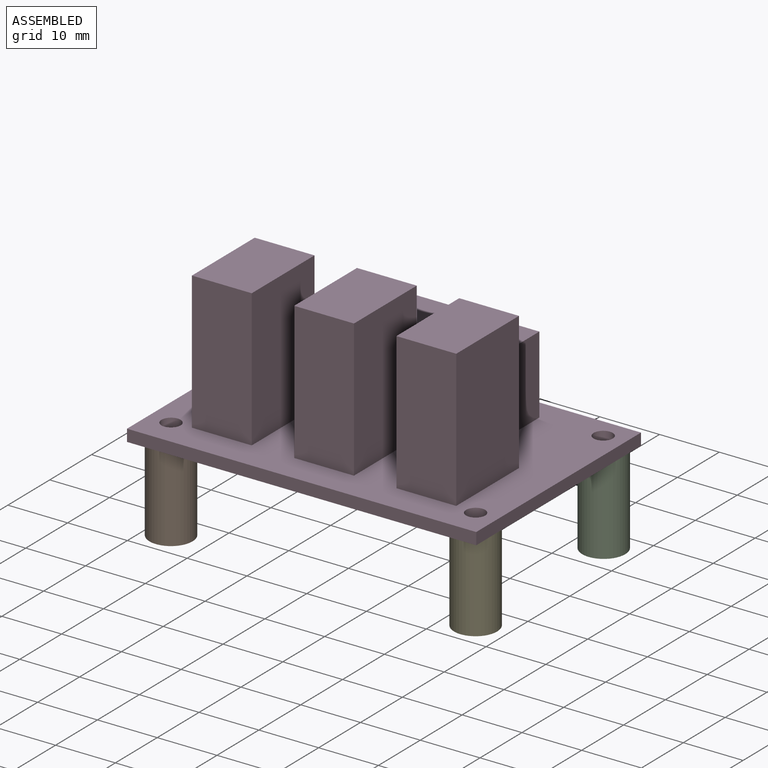
[diagram: assembled view]
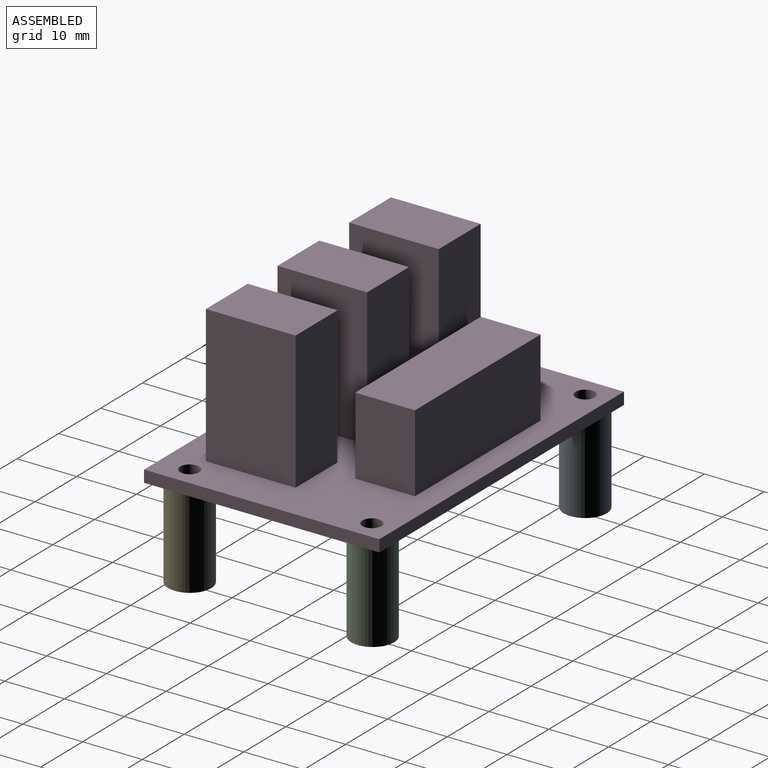
[diagram: assembled view, second angle]
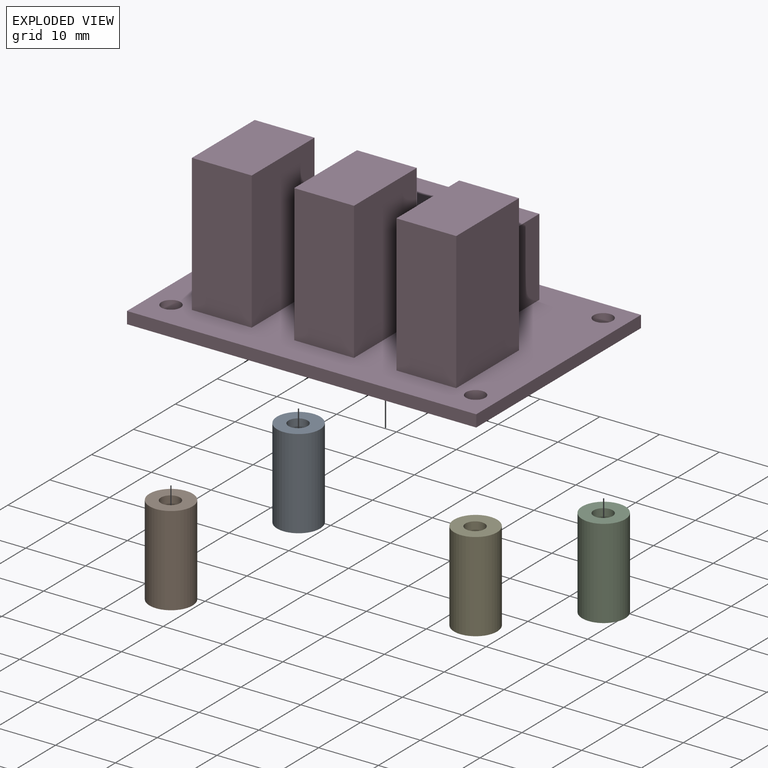
[diagram: exploded view]
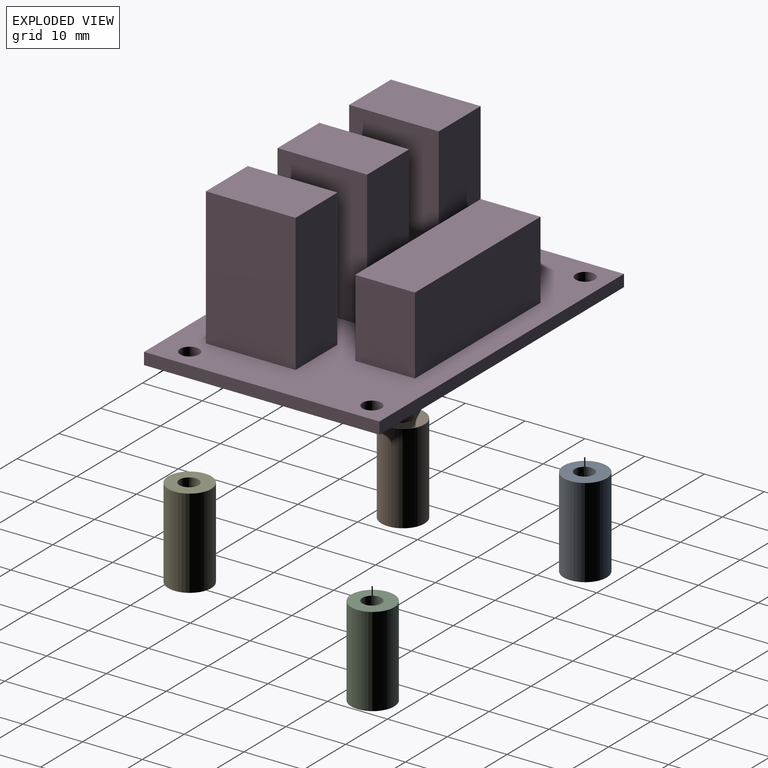
[diagram: exploded view, second angle]
ASSEMBLY  parts=5 mates=4
PART A: 4 faces, bbox 7.2x7.2x15 mm
  f0: cylinder r=1.6mm len=15mm, axis (0,0,-1), area 150.8mm2, adj f2,f3
  f1: cylinder r=3.6mm len=15mm, axis (0,0,-1), area 339.3mm2, adj f2,f3
  f2: plane 7.2x7.2mm, normal (0,0,1), area 32.7mm2, adj f0,f1
  f3: plane 7.2x7.2mm, normal (0,0,-1), area 32.7mm2, adj f0,f1
PART B: same geometry as A
PART C: same geometry as A
PART D: 30 faces, bbox 58.4x39.4x25 mm
  f0: plane 58.42x2mm, normal (0,1,0), area 116.8mm2, adj f1,f7,f8,f9
  f1: plane 39.37x2mm, normal (-1,0,0), area 78.7mm2, adj f0,f2,f8,f9
  f2: plane 58.42x2mm, normal (0,-1,0), area 116.8mm2, adj f1,f7,f8,f9
  f3: cylinder r=1.6mm len=3.2mm, axis (0,0,-1), area 20.1mm2, adj f8,f9
  f4: cylinder r=1.6mm len=3.2mm, axis (0,0,-1), area 20.1mm2, adj f8,f9
  f5: cylinder r=1.6mm len=3.2mm, axis (0,0,-1), area 20.1mm2, adj f8,f9
  f6: cylinder r=1.6mm len=3.2mm, axis (0,0,-1), area 20.1mm2, adj f8,f9
  f7: plane 39.37x2mm, normal (1,0,0), area 78.7mm2, adj f0,f2,f8,f9
  f8: plane 58.42x39.37mm, normal (0,0,1), area 1517.8mm2, adj f0,f1,f2,f3,f4,f5,f6,f7
  f9: plane 58.42x39.37mm, normal (0,0,-1), area 2267.8mm2, adj f0,f1,f2,f3,f4,f5,f6,f7
  f10: plane 23x15mm, normal (-1,0,0), area 345mm2, adj f8,f11,f13,f14
  f11: plane 23x10mm, normal (0,-1,0), area 230mm2, adj f8,f10,f12,f14
  f12: plane 23x15mm, normal (1,0,0), area 345mm2, adj f8,f11,f13,f14
  f13: plane 23x10mm, normal (0,1,0), area 230mm2, adj f8,f10,f12,f14
  f14: plane 15x10mm, normal (0,0,1), area 150mm2, adj f10,f11,f12,f13
  f15: plane 23x15mm, normal (-1,0,0), area 345mm2, adj f8,f16,f18,f19
  f16: plane 23x10mm, normal (0,-1,0), area 230mm2, adj f8,f15,f17,f19
  f17: plane 23x15mm, normal (1,0,0), area 345mm2, adj f8,f16,f18,f19
  f18: plane 23x10mm, normal (0,1,0), area 230mm2, adj f8,f15,f17,f19
  f19: plane 15x10mm, normal (0,0,1), area 150mm2, adj f15,f16,f17,f18
  f20: plane 23x15mm, normal (-1,0,0), area 345mm2, adj f8,f21,f23,f24
  f21: plane 23x10mm, normal (0,-1,0), area 230mm2, adj f8,f20,f22,f24
  f22: plane 23x15mm, normal (1,0,0), area 345mm2, adj f8,f21,f23,f24
  f23: plane 23x10mm, normal (0,1,0), area 230mm2, adj f8,f20,f22,f24
  f24: plane 15x10mm, normal (0,0,1), area 150mm2, adj f20,f21,f22,f23
  f25: plane 30x13mm, normal (0,1,0), area 390mm2, adj f8,f26,f28,f29
  f26: plane 13x10mm, normal (-1,0,0), area 130mm2, adj f8,f25,f27,f29
  f27: plane 30x13mm, normal (0,-1,0), area 390mm2, adj f8,f26,f28,f29
  f28: plane 13x10mm, normal (1,0,0), area 130mm2, adj f8,f25,f27,f29
  f29: plane 30x10mm, normal (0,0,1), area 300mm2, adj f25,f26,f27,f28
PART E: same geometry as A
PLACE A t=(-11.39,-21.54,-15)mm
PLACE B t=(-11.39,-52.02,-15)mm
PLACE C t=(39.56,-21.41,-15)mm
PLACE D at identity
PLACE E t=(39.56,-52.02,-15)mm
MATE fastened C.f0 <-> D.f6  axis (0,0,1) through (118.26,-3.81,0)mm
MATE fastened B.f1 <-> D.f3  axis (0,0,1) through (67.31,-34.29,0)mm
MATE fastened E.f1 <-> D.f4  axis (0,0,1) through (118.26,-34.29,0)mm
MATE fastened A.f1 <-> D.f5  axis (0,0,1) through (67.31,-3.81,0)mm
